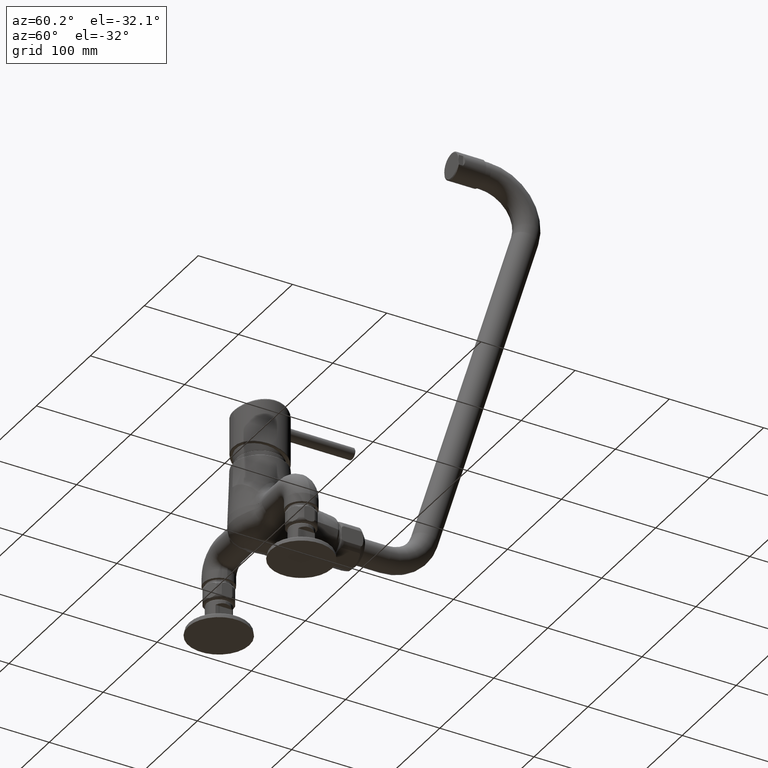
[diagram: clean part render]
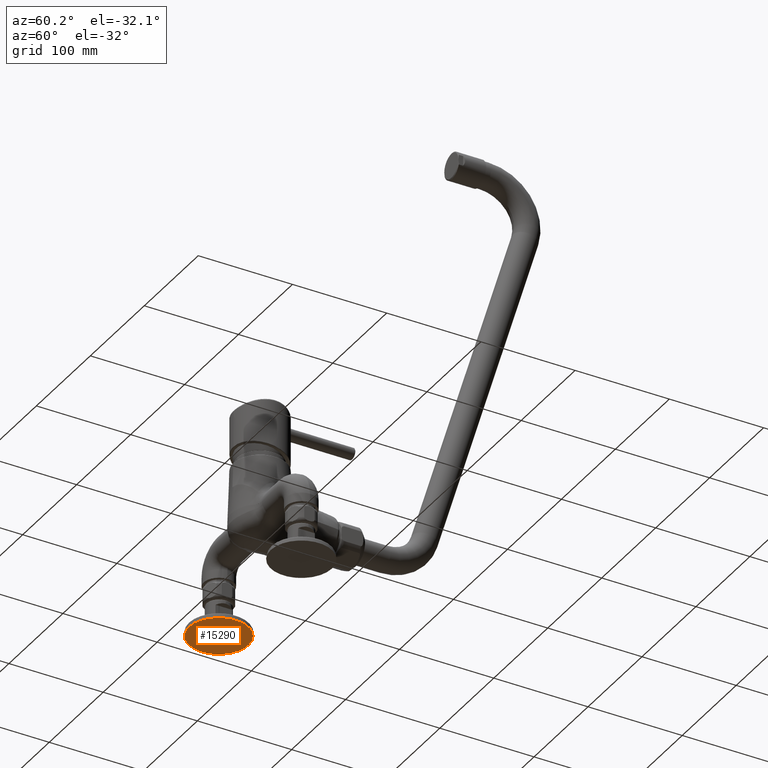
[diagram: same view with one face highlighted and labeled with its STEP entity id]
A machine part, auxiliary view. The second image highlights one B-rep face of the part: STEP entity #15290.
In plain terms, the highlighted planar face has unit normal (0, 0, -1).
Its self-contained STEP definition (entity closure, byte-faithful):
#14779=CARTESIAN_POINT('',(-7.65E1,5.2E1,-8.26E1));
#14780=DIRECTION('',(0.E0,0.E0,1.E0));
#14781=DIRECTION('',(0.E0,-1.E0,0.E0));
#14782=AXIS2_PLACEMENT_3D('',#14779,#14780,#14781);
#14784=CARTESIAN_POINT('',(-7.65E1,5.2E1,-8.26E1));
#14785=DIRECTION('',(0.E0,0.E0,-1.E0));
#14786=DIRECTION('',(0.E0,-1.E0,0.E0));
#14787=AXIS2_PLACEMENT_3D('',#14784,#14785,#14786);
#14963=CARTESIAN_POINT('',(-7.65E1,2.035069227294E1,-8.26E1));
#14965=VERTEX_POINT('',#14963);
#14967=CARTESIAN_POINT('',(-7.65E1,8.364930772706E1,-8.26E1));
#14969=VERTEX_POINT('',#14967);
#15281=CARTESIAN_POINT('',(-7.65E1,5.2E1,-8.26E1));
#15282=DIRECTION('',(0.E0,0.E0,-1.E0));
#15283=DIRECTION('',(-1.E0,0.E0,0.E0));
#15284=AXIS2_PLACEMENT_3D('',#15281,#15282,#15283);
#15285=PLANE('',#15284);
#15286=ORIENTED_EDGE('',*,*,#15262,.F.);
#15287=ORIENTED_EDGE('',*,*,#15239,.T.);
#15288=EDGE_LOOP('',(#15286,#15287));
#15289=FACE_OUTER_BOUND('',#15288,.F.);
#14783=CIRCLE('',#14782,3.164930772706E1);
#14788=CIRCLE('',#14787,3.164930772706E1);
#15239=EDGE_CURVE('',#14965,#14969,#14783,.T.);
#15262=EDGE_CURVE('',#14965,#14969,#14788,.T.);
#15290=ADVANCED_FACE('',(#15289),#15285,.T.);